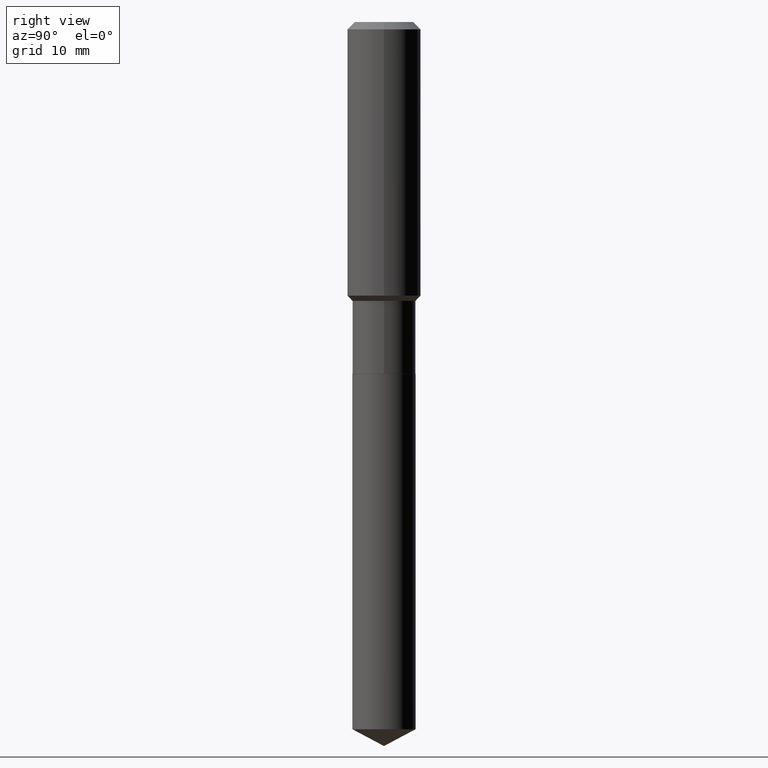
[diagram: clean part render]
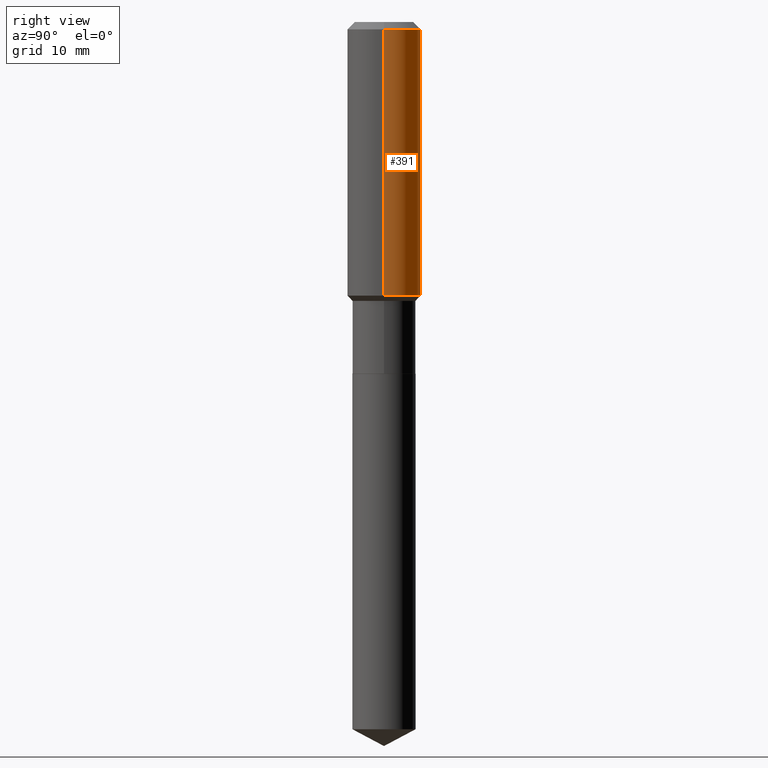
[diagram: same view with one face highlighted and labeled with its STEP entity id]
A machine part, right view. The second image highlights one B-rep face of the part: STEP entity #391.
In plain terms, the highlighted cylindrical surface (partial cylindrical patch) has radius 5.9995 mm, axis along (-0, 0, 1).
Its self-contained STEP definition (entity closure, byte-faithful):
#2 = EDGE_CURVE ( 'NONE', #347, #46, #124, .T. ) ;
#14 = EDGE_CURVE ( 'NONE', #170, #46, #309, .T. ) ;
#39 = ORIENTED_EDGE ( 'NONE', *, *, #14, .F. ) ;
#46 = VERTEX_POINT ( 'NONE', #96 ) ;
#47 = CIRCLE ( 'NONE', #407, 0.2362000000000002153 ) ;
#62 = LINE ( 'NONE', #336, #487 ) ;
#76 = EDGE_CURVE ( 'NONE', #121, #170, #62, .T. ) ;
#79 = CARTESIAN_POINT ( 'NONE',  ( 1.155239464041865506E-30, -1.649375784469511859E-16, -0.04724000000000028177 ) ) ;
#93 = DIRECTION ( 'NONE',  ( -2.445468806185136597E-29, 3.491481338843145583E-15, 1.000000000000000000 ) ) ;
#96 = CARTESIAN_POINT ( 'NONE',  ( -0.2361999999999999933, -1.469949323962811871E-15, -0.04724000000000028177 ) ) ;
#112 = EDGE_LOOP ( 'NONE', ( #154, #482, #39, #208 ) ) ;
#121 = VERTEX_POINT ( 'NONE', #125 ) ;
#123 = AXIS2_PLACEMENT_3D ( 'NONE', #338, #256, #209 ) ;
#124 = LINE ( 'NONE', #327, #317 ) ;
#125 = CARTESIAN_POINT ( 'NONE',  ( 0.2362000000000002153, -7.780940737678886085E-15, -1.756149999999999212 ) ) ;
#154 = ORIENTED_EDGE ( 'NONE', *, *, #404, .T. ) ;
#170 = VERTEX_POINT ( 'NONE', #183 ) ;
#183 = CARTESIAN_POINT ( 'NONE',  ( 0.2361999999999999933, -1.814313362916447440E-15, -0.04724000000000028177 ) ) ;
#208 = ORIENTED_EDGE ( 'NONE', *, *, #76, .F. ) ;
#209 = DIRECTION ( 'NONE',  ( 1.000000000000000000, -6.982962677686266711E-15, 4.876176775795935793E-29 ) ) ;
#214 = CARTESIAN_POINT ( 'NONE',  ( -0.2362000000000002153, -4.453263011344030010E-15, -1.756149999999999212 ) ) ;
#236 = DIRECTION ( 'NONE',  ( -2.445468806185136877E-29, 3.491481338843145188E-15, 1.000000000000000000 ) ) ;
#244 = DIRECTION ( 'NONE',  ( 1.000000000000000000, -6.982962677686266711E-15, 0.000000000000000000 ) ) ;
#256 = DIRECTION ( 'NONE',  ( -2.445468806185136597E-29, 3.491481338843145583E-15, 1.000000000000000000 ) ) ;
#309 = CIRCLE ( 'NONE', #459, 0.2361999999999999933 ) ;
#317 = VECTOR ( 'NONE', #388, 39.37007874015748143 ) ;
#325 = DIRECTION ( 'NONE',  ( -2.445468806185136597E-29, 3.491481338843145583E-15, 1.000000000000000000 ) ) ;
#327 = CARTESIAN_POINT ( 'NONE',  ( -0.2362000000000001043, 1.678301941865357380E-15, -1.161852468318209317E-29 ) ) ;
#336 = CARTESIAN_POINT ( 'NONE',  ( 0.2362000000000001043, -1.649375784469496920E-15, 1.151752954443000508E-29 ) ) ;
#338 = CARTESIAN_POINT ( 'NONE',  ( 0.000000000000000000, 0.000000000000000000, 0.000000000000000000 ) ) ;
#347 = VERTEX_POINT ( 'NONE', #214 ) ;
#388 = DIRECTION ( 'NONE',  ( -2.445468806185136877E-29, 3.491481338843145188E-15, 1.000000000000000000 ) ) ;
#391 = ADVANCED_FACE ( 'NONE', ( #431 ), #472, .T. ) ;
#404 = EDGE_CURVE ( 'NONE', #121, #347, #47, .T. ) ;
#407 = AXIS2_PLACEMENT_3D ( 'NONE', #443, #93, #437 ) ;
#431 = FACE_OUTER_BOUND ( 'NONE', #112, .T. ) ;
#437 = DIRECTION ( 'NONE',  ( 1.000000000000000000, -6.982962677686266711E-15, 0.000000000000000000 ) ) ;
#443 = CARTESIAN_POINT ( 'NONE',  ( 4.294610043982025794E-29, -6.131564953209387982E-15, -1.756149999999999212 ) ) ;
#459 = AXIS2_PLACEMENT_3D ( 'NONE', #79, #325, #244 ) ;
#472 = CYLINDRICAL_SURFACE ( 'NONE', #123, 0.2362000000000001043 ) ;
#482 = ORIENTED_EDGE ( 'NONE', *, *, #2, .T. ) ;
#487 = VECTOR ( 'NONE', #236, 39.37007874015748143 ) ;